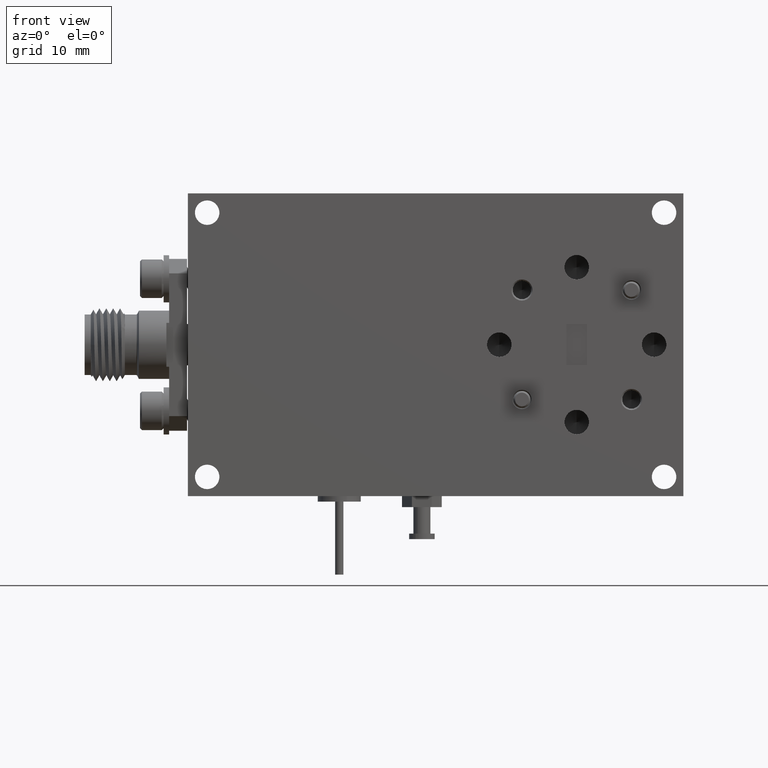
[diagram: clean part render]
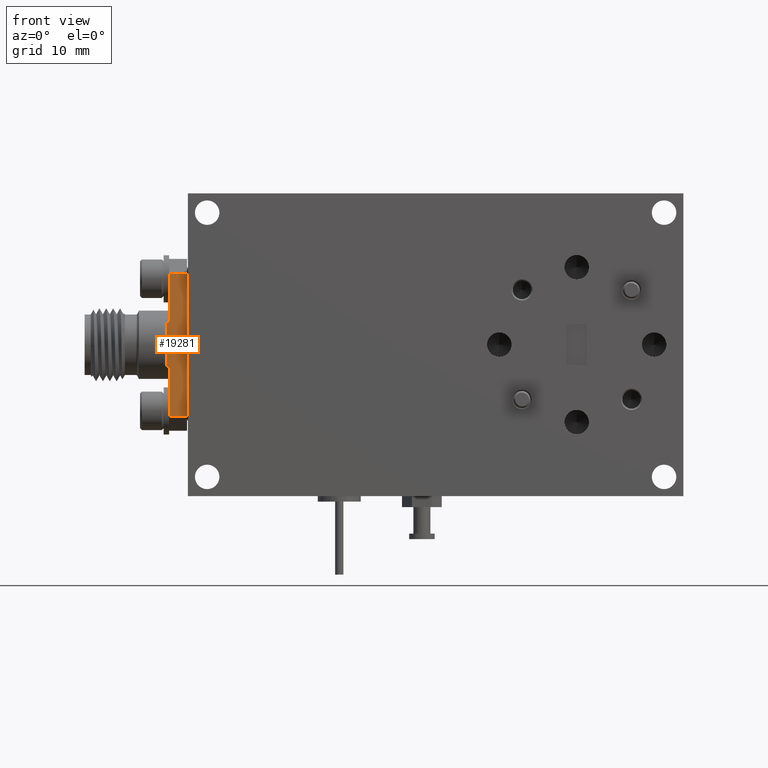
[diagram: same view with one face highlighted and labeled with its STEP entity id]
A machine part, front view. The second image highlights one B-rep face of the part: STEP entity #19281.
In plain terms, the highlighted planar face has unit normal (-0, 1, 0).
Its self-contained STEP definition (entity closure, byte-faithful):
#63 = VECTOR ( 'NONE', #16802, 39.37007874015748100 ) ;
#331 = LINE ( 'NONE', #8125, #23139 ) ;
#484 = LINE ( 'NONE', #10296, #23290 ) ;
#1023 = VECTOR ( 'NONE', #17658, 39.37007874015748100 ) ;
#1708 = VERTEX_POINT ( 'NONE', #17510 ) ;
#2712 = ORIENTED_EDGE ( 'NONE', *, *, #11419, .F. ) ;
#3162 = EDGE_LOOP ( 'NONE', ( #11015, #9159, #13569, #2712, #7651, #28414, #12108, #16704 ) ) ;
#5463 = DIRECTION ( 'NONE',  ( -1.000000000000000000, 1.110223024625162000E-016, 1.595945597898664000E-016 ) ) ;
#5564 = LINE ( 'NONE', #11922, #25884 ) ;
#5696 = LINE ( 'NONE', #9083, #28483 ) ;
#5823 = CARTESIAN_POINT ( 'NONE',  ( -0.9780000000000002000, 0.1550000000000000500, 0.07969316156358732800 ) ) ;
#6557 = VERTEX_POINT ( 'NONE', #11474 ) ;
#6882 = LINE ( 'NONE', #26253, #20376 ) ;
#7651 = ORIENTED_EDGE ( 'NONE', *, *, #29512, .F. ) ;
#8125 = CARTESIAN_POINT ( 'NONE',  ( -0.9680000000000005300, 0.1550000000000004700, 0.2977100099089727800 ) ) ;
#8214 = AXIS2_PLACEMENT_3D ( 'NONE', #11491, #13776, #18017 ) ;
#8536 = EDGE_CURVE ( 'NONE', #26558, #1708, #5564, .T. ) ;
#9064 = CARTESIAN_POINT ( 'NONE',  ( -0.9030000000000000200, 0.1550000000000000500, 0.2977100099089727800 ) ) ;
#9083 = CARTESIAN_POINT ( 'NONE',  ( -0.9780000000000002000, 0.1550000000000000500, 0.07969316156358732800 ) ) ;
#9159 = ORIENTED_EDGE ( 'NONE', *, *, #15104, .T. ) ;
#10244 = VERTEX_POINT ( 'NONE', #29063 ) ;
#10279 = CARTESIAN_POINT ( 'NONE',  ( -0.9680000000000005300, 0.1550000000000000500, 0.07969316156358732800 ) ) ;
#10296 = CARTESIAN_POINT ( 'NONE',  ( -0.9780000000000002000, 0.1550000000000000500, -0.07969316156358705000 ) ) ;
#11015 = ORIENTED_EDGE ( 'NONE', *, *, #15639, .T. ) ;
#11419 = EDGE_CURVE ( 'NONE', #29496, #18508, #12201, .T. ) ;
#11474 = CARTESIAN_POINT ( 'NONE',  ( -0.9680000000000005300, 0.1550000000000004700, 0.2592430274072490300 ) ) ;
#11491 = CARTESIAN_POINT ( 'NONE',  ( -0.9680000000000005300, 0.1550000000000004700, 0.2977100099089727800 ) ) ;
#11856 = LINE ( 'NONE', #9064, #23600 ) ;
#11922 = CARTESIAN_POINT ( 'NONE',  ( -0.9680000000000005300, 0.1550000000000004700, 0.2977100099089727800 ) ) ;
#12108 = ORIENTED_EDGE ( 'NONE', *, *, #8536, .F. ) ;
#12201 = LINE ( 'NONE', #5823, #63 ) ;
#12920 = VERTEX_POINT ( 'NONE', #14866 ) ;
#13569 = ORIENTED_EDGE ( 'NONE', *, *, #18141, .F. ) ;
#13776 = DIRECTION ( 'NONE',  ( -2.522968227147275000E-031, 1.000000000000000000, 5.316093104293475700E-017 ) ) ;
#14368 = VERTEX_POINT ( 'NONE', #22893 ) ;
#14866 = CARTESIAN_POINT ( 'NONE',  ( -0.9030000000000000200, 0.1549999999999999200, -0.2592430274072485300 ) ) ;
#14906 = DIRECTION ( 'NONE',  ( -1.179611963664225600E-016, -5.316093104293476300E-017, 1.000000000000000000 ) ) ;
#15042 = DIRECTION ( 'NONE',  ( 1.000000000000000000, -1.110223024625162000E-016, -1.595945597898664000E-016 ) ) ;
#15104 = EDGE_CURVE ( 'NONE', #14368, #6557, #6882, .T. ) ;
#15639 = EDGE_CURVE ( 'NONE', #12920, #14368, #11856, .T. ) ;
#16092 = CARTESIAN_POINT ( 'NONE',  ( -0.9780000000000002000, 0.1549999999999999200, 0.07969316156358732800 ) ) ;
#16704 = ORIENTED_EDGE ( 'NONE', *, *, #18605, .T. ) ;
#16802 = DIRECTION ( 'NONE',  ( 1.000000000000000000, -1.110223024625162000E-016, -1.595945597898664000E-016 ) ) ;
#17510 = CARTESIAN_POINT ( 'NONE',  ( -0.9680000000000005300, 0.1550000000000001900, -0.07969316156358705000 ) ) ;
#17658 = DIRECTION ( 'NONE',  ( 1.000000000000000000, -1.110223024625162000E-016, -1.595945597898664000E-016 ) ) ;
#18017 = DIRECTION ( 'NONE',  ( 1.179611963664225600E-016, 5.316093104293475700E-017, -1.000000000000000000 ) ) ;
#18141 = EDGE_CURVE ( 'NONE', #18508, #6557, #331, .T. ) ;
#18467 = DIRECTION ( 'NONE',  ( -1.179611963664225600E-016, -5.316093104293476300E-017, 1.000000000000000000 ) ) ;
#18508 = VERTEX_POINT ( 'NONE', #10279 ) ;
#18605 = EDGE_CURVE ( 'NONE', #26558, #12920, #26680, .T. ) ;
#19281 = ADVANCED_FACE ( 'NONE', ( #23076 ), #25156, .F. ) ;
#20376 = VECTOR ( 'NONE', #5463, 39.37007874015748100 ) ;
#22893 = CARTESIAN_POINT ( 'NONE',  ( -0.9030000000000000200, 0.1550000000000001900, 0.2592430274072490300 ) ) ;
#23076 = FACE_OUTER_BOUND ( 'NONE', #3162, .T. ) ;
#23139 = VECTOR ( 'NONE', #14906, 39.37007874015748100 ) ;
#23290 = VECTOR ( 'NONE', #15042, 39.37007874015748100 ) ;
#23600 = VECTOR ( 'NONE', #24979, 39.37007874015748100 ) ;
#24480 = CARTESIAN_POINT ( 'NONE',  ( -0.9680000000000005300, 0.1550000000000003300, -0.2592430274072484200 ) ) ;
#24979 = DIRECTION ( 'NONE',  ( -1.179611963664225600E-016, -5.316093104293476300E-017, 1.000000000000000000 ) ) ;
#25156 = PLANE ( 'NONE',  #8214 ) ;
#25582 = EDGE_CURVE ( 'NONE', #10244, #1708, #484, .T. ) ;
#25884 = VECTOR ( 'NONE', #27776, 39.37007874015748100 ) ;
#26253 = CARTESIAN_POINT ( 'NONE',  ( -0.9000000000000001300, 0.1550000000000001900, 0.2592430274072490300 ) ) ;
#26558 = VERTEX_POINT ( 'NONE', #27535 ) ;
#26680 = LINE ( 'NONE', #24480, #1023 ) ;
#27535 = CARTESIAN_POINT ( 'NONE',  ( -0.9680000000000005300, 0.1550000000000003300, -0.2592430274072485300 ) ) ;
#27776 = DIRECTION ( 'NONE',  ( -1.179611963664225600E-016, -5.316093104293476300E-017, 1.000000000000000000 ) ) ;
#28414 = ORIENTED_EDGE ( 'NONE', *, *, #25582, .T. ) ;
#28483 = VECTOR ( 'NONE', #18467, 39.37007874015748100 ) ;
#29063 = CARTESIAN_POINT ( 'NONE',  ( -0.9780000000000002000, 0.1550000000000000500, -0.07969316156358705000 ) ) ;
#29496 = VERTEX_POINT ( 'NONE', #16092 ) ;
#29512 = EDGE_CURVE ( 'NONE', #10244, #29496, #5696, .T. ) ;